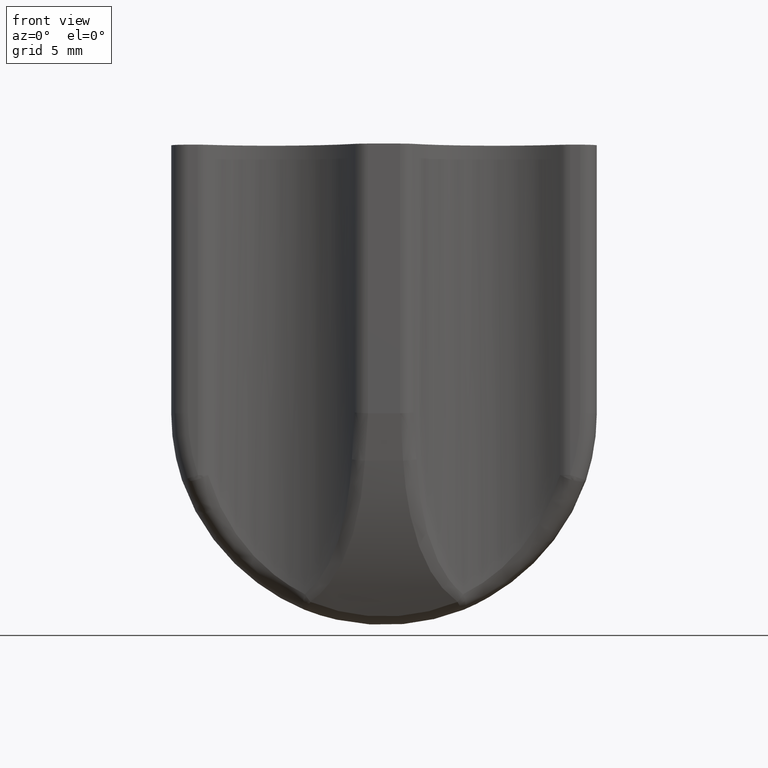
[diagram: clean part render]
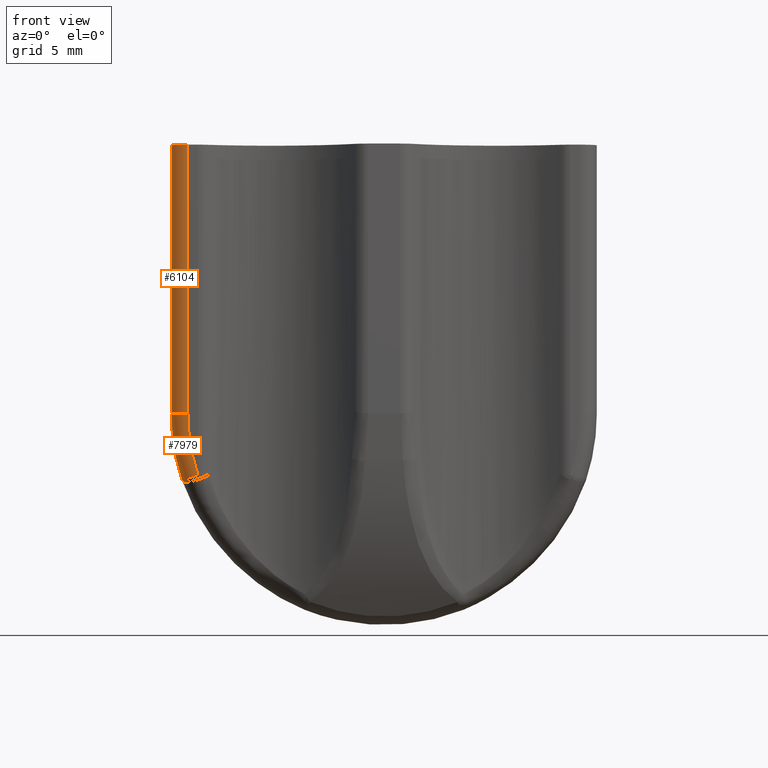
[diagram: same view with one multi-face feature highlighted, each face labeled with its STEP entity id]
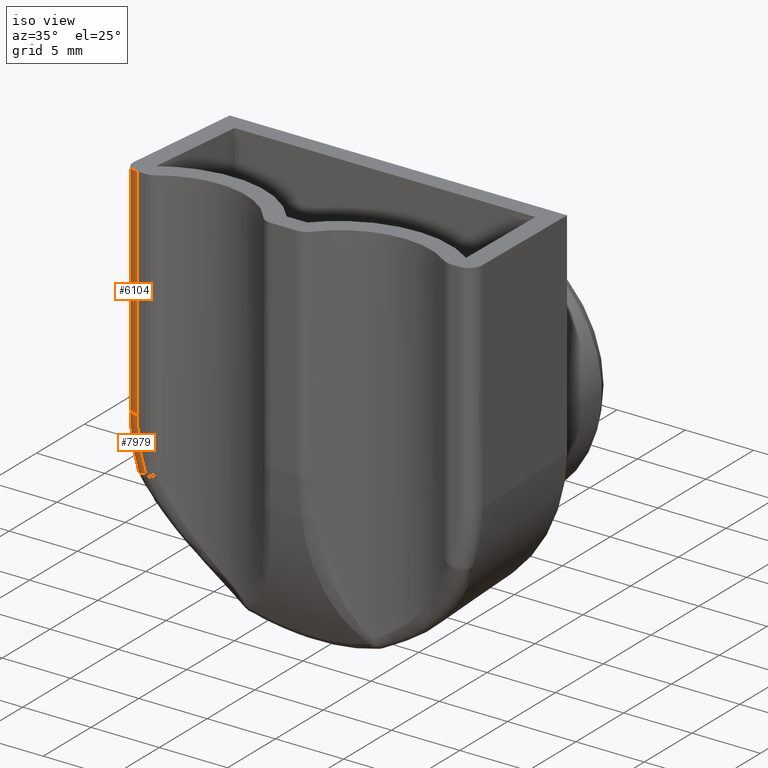
[diagram: same view with one multi-face feature highlighted, each face labeled with its STEP entity id]
A machine part, front view. The highlighted faces form ONE feature: a constant-radius fillet chain: 2 tangent blend faces with common blend radius 1 mm. The faces share edges in the B-rep.
A second angle (iso view) of the same feature is appended — it is thin or edge-on in the first view.
Their STEP definitions:
[1] entity #7979 (Torus):
#219 = CARTESIAN_POINT ( 'NONE',  ( -1.040834085586084300E-014, -9.456380612634680100, -6.938893903907228400E-015 ) ) ;
#220 = AXIS2_PLACEMENT_3D ( 'NONE', #219, #224, #223 ) ;
#221 = CIRCLE ( 'NONE', #220, 12.76287449404940600 ) ;
#222 = CARTESIAN_POINT ( 'NONE',  ( -12.76287449404943100, -9.456380612634680100, -1.387778780781445700E-014 ) ) ;
#223 = DIRECTION ( 'NONE',  ( -2.220446049250313100E-016, -4.077584897004845200E-016, -1.000000000000000000 ) ) ;
#224 = DIRECTION ( 'NONE',  ( 5.622133538114148000E-016, 1.000000000000000000, 4.544217445503873200E-016 ) ) ;
#500 = CARTESIAN_POINT ( 'NONE',  ( -12.11346439979339400, -9.456380612634735200, -4.019321533019669000 ) ) ;
#2917 = CARTESIAN_POINT ( 'NONE',  ( -12.76382627246756100, -9.500000000000143900, -1.365574320288942700E-014 ) ) ;
#2938 = CARTESIAN_POINT ( 'NONE',  ( -11.16525049457549000, -10.50000000000009200, -3.704698363184301300 ) ) ;
#2939 = DIRECTION ( 'NONE',  ( 2.220446049250313100E-016, 4.423875622942882200E-016, 1.000000000000000000 ) ) ;
#2940 = DIRECTION ( 'NONE',  ( -5.622133538114148000E-016, -1.000000000000000000, -4.544217445503873200E-016 ) ) ;
#2941 = CARTESIAN_POINT ( 'NONE',  ( -1.040834085586084300E-014, -10.50000000000000900, -6.938893903907228400E-015 ) ) ;
#2942 = AXIS2_PLACEMENT_3D ( 'NONE', #2941, #2940, #2939 ) ;
#2961 = CIRCLE ( 'NONE', #2942, 11.76382627246754700 ) ;
#2965 = CIRCLE ( 'NONE', #3010, 1.000000000000000900 ) ;
#2997 = CARTESIAN_POINT ( 'NONE',  ( -12.11436774911255100, -9.500000000000092400, -4.019621269845607100 ) ) ;
#3006 = CARTESIAN_POINT ( 'NONE',  ( -11.76382627246754400, -10.50000000000009200, 0.0000000000000000000 ) ) ;
#3007 = DIRECTION ( 'NONE',  ( -1.000000000000000000, 0.0000000000000000000, -2.220446049250313100E-016 ) ) ;
#3008 = DIRECTION ( 'NONE',  ( -2.220446049250313100E-016, -4.544217445503875200E-016, -1.000000000000000000 ) ) ;
#3009 = CARTESIAN_POINT ( 'NONE',  ( -11.76382627246756100, -9.500000000000147400, -1.387778780781445700E-014 ) ) ;
#3010 = AXIS2_PLACEMENT_3D ( 'NONE', #3009, #3008, #3007 ) ;
#3029 = DIRECTION ( 'NONE',  ( -0.9491172545370728500, 0.0000000000000000000, -0.3149229066613118400 ) ) ;
#3030 = DIRECTION ( 'NONE',  ( 0.3149229066613122900, -2.525145819694871900E-016, -0.9491172545370727400 ) ) ;
#3031 = CARTESIAN_POINT ( 'NONE',  ( -11.16525049457547600, -9.500000000000092400, -3.704698363184294700 ) ) ;
#3032 = AXIS2_PLACEMENT_3D ( 'NONE', #3031, #3030, #3029 ) ;
#3033 = CIRCLE ( 'NONE', #3032, 1.000000000000002000 ) ;
#5361 = DIRECTION ( 'NONE',  ( -1.000000000000000000, 0.0000000000000000000, -2.220446049250313100E-016 ) ) ;
#5362 = DIRECTION ( 'NONE',  ( -2.220446049250313100E-016, -4.544217445503875200E-016, -1.000000000000000000 ) ) ;
#5363 = CARTESIAN_POINT ( 'NONE',  ( -11.76382627246756100, -9.500000000000147400, -1.387778780781445700E-014 ) ) ;
#5417 = DIRECTION ( 'NONE',  ( -0.9491172545370728500, 0.0000000000000000000, -0.3149229066613118400 ) ) ;
#5418 = DIRECTION ( 'NONE',  ( 0.3149229066613122900, -2.525145819694871900E-016, -0.9491172545370727400 ) ) ;
#5419 = CARTESIAN_POINT ( 'NONE',  ( -11.16525049457547600, -9.500000000000092400, -3.704698363184294700 ) ) ;
#5420 = AXIS2_PLACEMENT_3D ( 'NONE', #5419, #5418, #5417 ) ;
#5421 = CIRCLE ( 'NONE', #5420, 1.000000000000002000 ) ;
#5433 = CIRCLE ( 'NONE', #5435, 1.000000000000000900 ) ;
#5434 = DIRECTION ( 'NONE',  ( 2.220446049250308200E-016, -4.544217445503873200E-016, 1.000000000000000000 ) ) ;
#5435 = AXIS2_PLACEMENT_3D ( 'NONE', #5363, #5362, #5361 ) ;
#5436 = CARTESIAN_POINT ( 'NONE',  ( -1.040834085586084300E-014, -9.500000000000008900, -6.938893903907228400E-015 ) ) ;
#5437 = AXIS2_PLACEMENT_3D ( 'NONE', #5436, #5438, #5434 ) ;
#5438 = DIRECTION ( 'NONE',  ( 5.622133538114148000E-016, 1.000000000000000000, 4.544217445503873200E-016 ) ) ;
#5444 = TOROIDAL_SURFACE ( 'NONE', #5437, 11.76382627246754700, 1.000000000000000000 ) ;
#5445 = FACE_OUTER_BOUND ( 'NONE', #7966, .T. ) ;
#6003 = EDGE_CURVE ( 'NONE', #6137, #6004, #221, .T. ) ;
#6004 = VERTEX_POINT ( 'NONE', #222 ) ;
#6137 = VERTEX_POINT ( 'NONE', #500 ) ;
#6222 = VERTEX_POINT ( 'NONE', #2917 ) ;
#6231 = EDGE_CURVE ( 'NONE', #6251, #6232, #2961, .T. ) ;
#6232 = VERTEX_POINT ( 'NONE', #2938 ) ;
#6250 = EDGE_CURVE ( 'NONE', #6251, #6222, #2965, .T. ) ;
#6251 = VERTEX_POINT ( 'NONE', #3006 ) ;
#6261 = VERTEX_POINT ( 'NONE', #2997 ) ;
#6263 = EDGE_CURVE ( 'NONE', #6261, #6137, #3033, .T. ) ;
#7814 = ORIENTED_EDGE ( 'NONE', *, *, #6231, .F. ) ;
#7961 = ORIENTED_EDGE ( 'NONE', *, *, #6003, .F. ) ;
#7962 = ORIENTED_EDGE ( 'NONE', *, *, #6263, .F. ) ;
#7963 = ORIENTED_EDGE ( 'NONE', *, *, #7964, .F. ) ;
#7964 = EDGE_CURVE ( 'NONE', #6232, #6261, #5421, .T. ) ;
#7966 = EDGE_LOOP ( 'NONE', ( #7980, #7981, #7961, #7962, #7963, #7814 ) ) ;
#7979 = ADVANCED_FACE ( 'NONE', ( #5445 ), #5444, .T. ) ;
#7980 = ORIENTED_EDGE ( 'NONE', *, *, #6250, .T. ) ;
#7981 = ORIENTED_EDGE ( 'NONE', *, *, #7982, .T. ) ;
#7982 = EDGE_CURVE ( 'NONE', #6222, #6004, #5433, .T. ) ;
[2] entity #6104 (Cylinder):
#412 = DIRECTION ( 'NONE',  ( -1.000000000000000000, 0.0000000000000000000, -2.220446049250313100E-016 ) ) ;
#413 = DIRECTION ( 'NONE',  ( -2.220446049250313100E-016, -4.544217445503875200E-016, -1.000000000000000000 ) ) ;
#414 = CARTESIAN_POINT ( 'NONE',  ( -11.76382627246756100, -9.500000000000147400, -1.387778780781445700E-014 ) ) ;
#415 = AXIS2_PLACEMENT_3D ( 'NONE', #414, #413, #412 ) ;
#418 = CYLINDRICAL_SURFACE ( 'NONE', #415, 1.000000000000000900 ) ;
#419 = FACE_OUTER_BOUND ( 'NONE', #6103, .T. ) ;
#471 = DIRECTION ( 'NONE',  ( -2.220446049250313100E-016, -4.544217445503875200E-016, -1.000000000000000000 ) ) ;
#472 = VECTOR ( 'NONE', #471, 1000.000000000000000 ) ;
#473 = CARTESIAN_POINT ( 'NONE',  ( -11.76382627246754400, -10.50000000000009200, 0.0000000000000000000 ) ) ;
#474 = LINE ( 'NONE', #473, #472 ) ;
#2917 = CARTESIAN_POINT ( 'NONE',  ( -12.76382627246756100, -9.500000000000143900, -1.365574320288942700E-014 ) ) ;
#2918 = DIRECTION ( 'NONE',  ( -2.220446049250313100E-016, -4.544217445503875200E-016, -1.000000000000000000 ) ) ;
#2919 = VECTOR ( 'NONE', #2918, 1000.000000000000000 ) ;
#2920 = CARTESIAN_POINT ( 'NONE',  ( -12.76382627246756100, -9.500000000000147400, -1.409983241273948800E-014 ) ) ;
#2921 = LINE ( 'NONE', #2920, #2919 ) ;
#2965 = CIRCLE ( 'NONE', #3010, 1.000000000000000900 ) ;
#2966 = CARTESIAN_POINT ( 'NONE',  ( -11.76382627246755400, -10.50000000000000900, 16.10843990053936600 ) ) ;
#2974 = CARTESIAN_POINT ( 'NONE',  ( -11.76382627246755400, -10.50000000000000900, 16.10843990053936600 ) ) ;
#2975 = CARTESIAN_POINT ( 'NONE',  ( -12.34961271009443000, -10.50000000000007300, 16.10843990053936300 ) ) ;
#2976 = CARTESIAN_POINT ( 'NONE',  ( -12.76382627246752400, -10.08578643762701800, 16.09035494584066600 ) ) ;
#2977 = CARTESIAN_POINT ( 'NONE',  ( -12.76382627246755800, -9.500000000000140300, 16.06477895763085300 ) ) ;
#2978 =( BOUNDED_CURVE ( )  B_SPLINE_CURVE ( 3, ( #2977, #2976, #2975, #2974 ),
 .UNSPECIFIED., .F., .T. ) 
 B_SPLINE_CURVE_WITH_KNOTS ( ( 4, 4 ),
 ( 1.570796326794973600, 3.141592653589807300 ),
 .UNSPECIFIED. ) 
 CURVE ( )  GEOMETRIC_REPRESENTATION_ITEM ( )  RATIONAL_B_SPLINE_CURVE ( ( 1.000000000000000000, 0.8047378541243797000, 0.8047378541243797000, 1.000000000000000000 ) ) 
 REPRESENTATION_ITEM ( '' )  );
#2980 = CARTESIAN_POINT ( 'NONE',  ( -12.76382627246755800, -9.500000000000140300, 16.06477895763085300 ) ) ;
#3006 = CARTESIAN_POINT ( 'NONE',  ( -11.76382627246754400, -10.50000000000009200, 0.0000000000000000000 ) ) ;
#3007 = DIRECTION ( 'NONE',  ( -1.000000000000000000, 0.0000000000000000000, -2.220446049250313100E-016 ) ) ;
#3008 = DIRECTION ( 'NONE',  ( -2.220446049250313100E-016, -4.544217445503875200E-016, -1.000000000000000000 ) ) ;
#3009 = CARTESIAN_POINT ( 'NONE',  ( -11.76382627246756100, -9.500000000000147400, -1.387778780781445700E-014 ) ) ;
#3010 = AXIS2_PLACEMENT_3D ( 'NONE', #3009, #3008, #3007 ) ;
#6103 = EDGE_LOOP ( 'NONE', ( #6183, #6220, #6173, #6108 ) ) ;
#6104 = ADVANCED_FACE ( 'NONE', ( #419 ), #418, .T. ) ;
#6108 = ORIENTED_EDGE ( 'NONE', *, *, #6109, .F. ) ;
#6109 = EDGE_CURVE ( 'NONE', #6249, #6251, #474, .T. ) ;
#6173 = ORIENTED_EDGE ( 'NONE', *, *, #6250, .F. ) ;
#6183 = ORIENTED_EDGE ( 'NONE', *, *, #6241, .F. ) ;
#6220 = ORIENTED_EDGE ( 'NONE', *, *, #6221, .T. ) ;
#6221 = EDGE_CURVE ( 'NONE', #6242, #6222, #2921, .T. ) ;
#6222 = VERTEX_POINT ( 'NONE', #2917 ) ;
#6241 = EDGE_CURVE ( 'NONE', #6242, #6249, #2978, .T. ) ;
#6242 = VERTEX_POINT ( 'NONE', #2980 ) ;
#6249 = VERTEX_POINT ( 'NONE', #2966 ) ;
#6250 = EDGE_CURVE ( 'NONE', #6251, #6222, #2965, .T. ) ;
#6251 = VERTEX_POINT ( 'NONE', #3006 ) ;